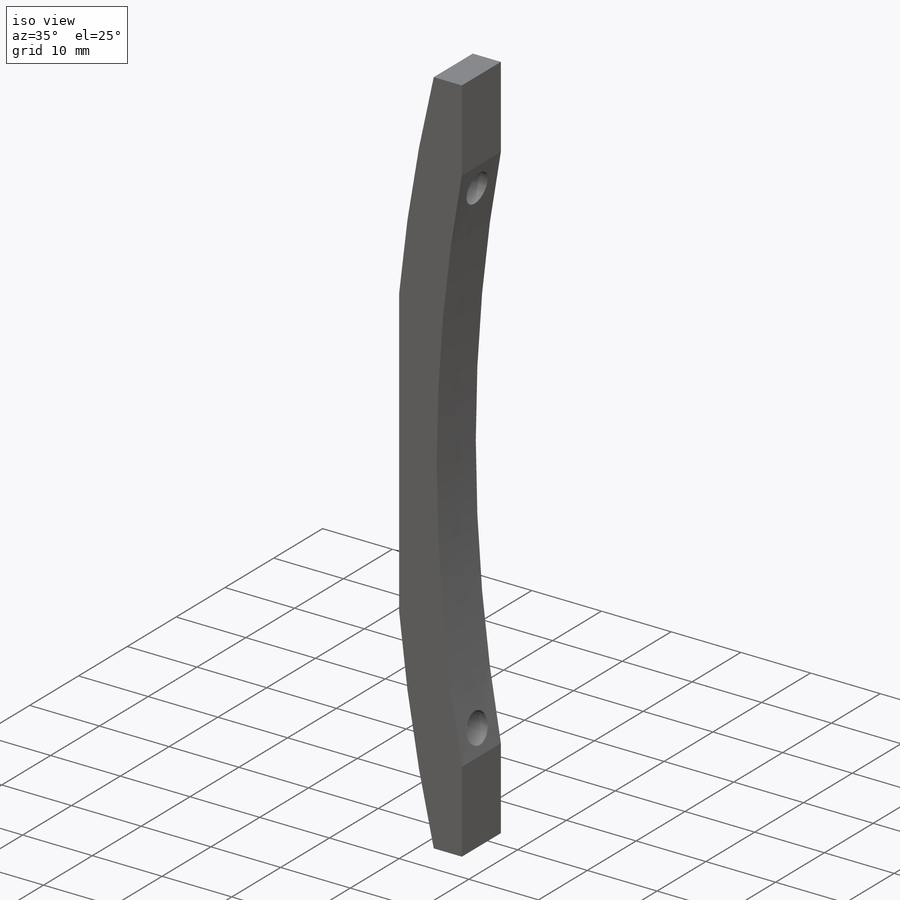
[diagram: iso view]
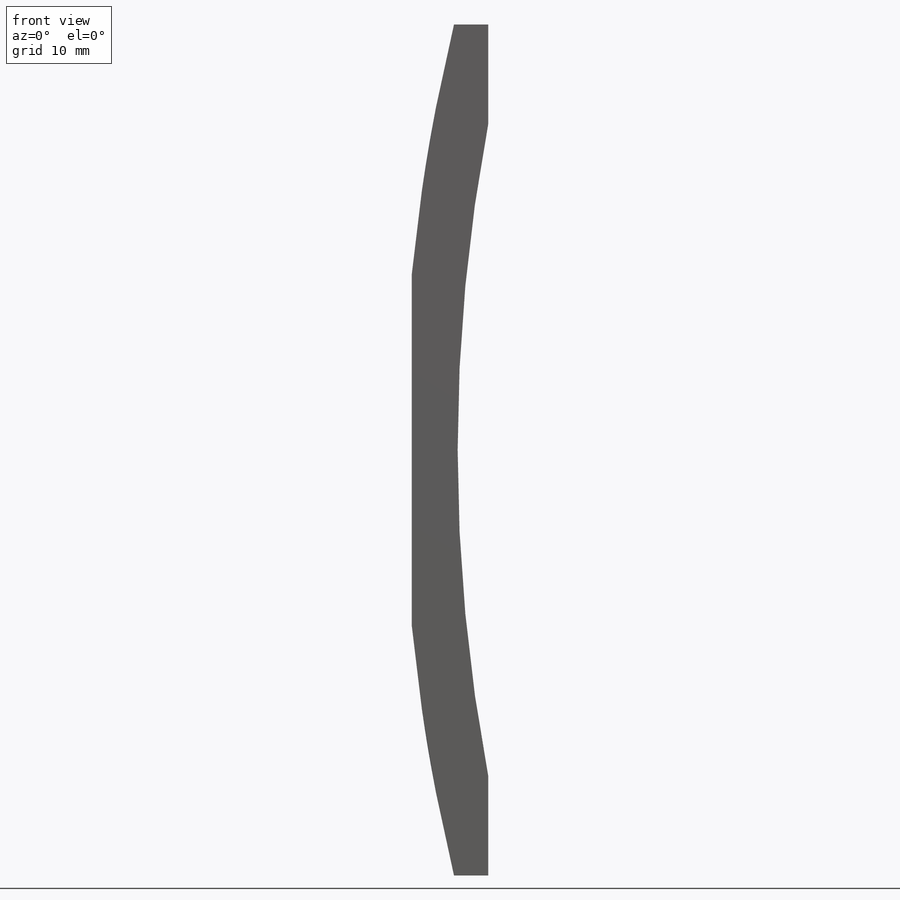
[diagram: front view]
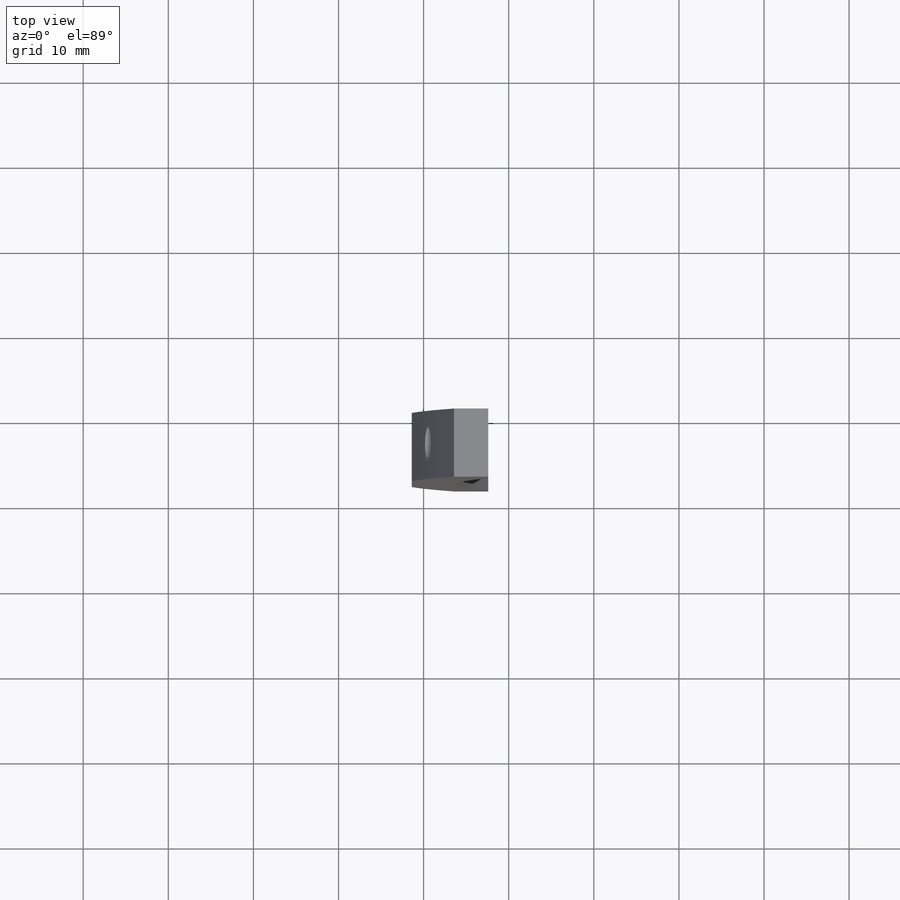
[diagram: top view]
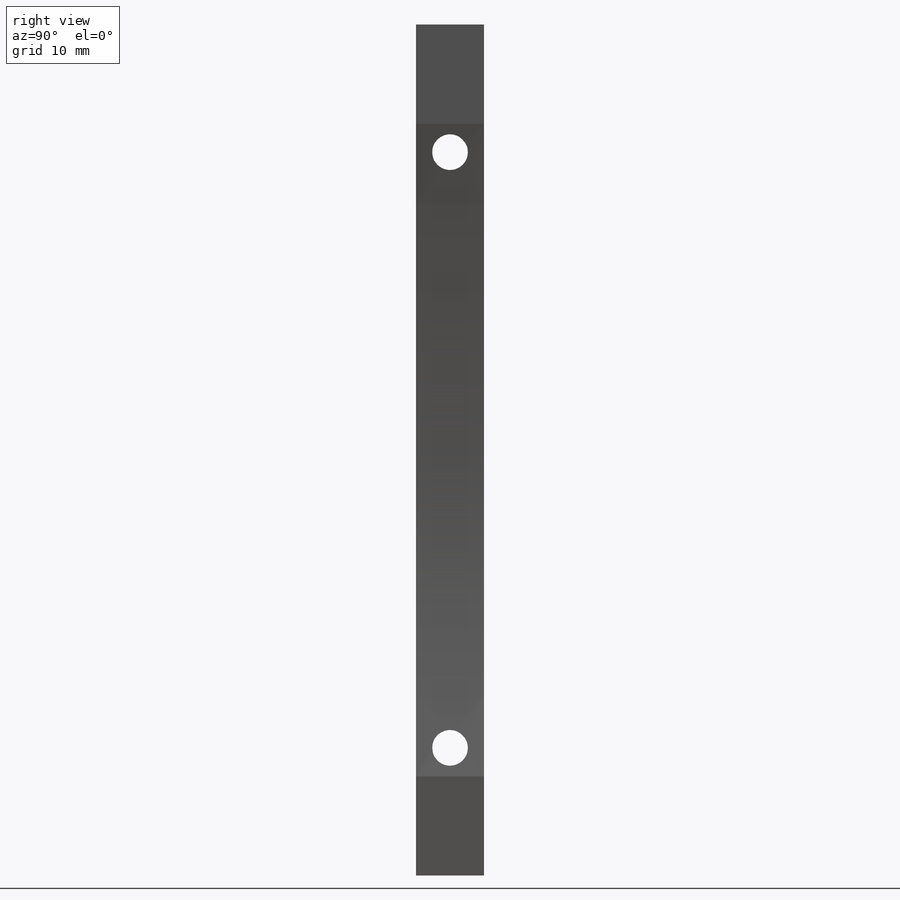
[diagram: right view]
SOLIDWORKS PART (.sldprt)
format: sldprt  version: not decoded by parser v0  size: 210,944 bytes
history: native  units: mm
features: sketch x6, plane x3, hole x2, thread x2, material x1, extrude x1, cut_extrude x1 (+13 scaffold rows collapsed)
feature tree (29):
  scaffold x13  (default folders/planes/origin — collapsed)
  material  "3.1325 (EN-AW 2017A)"
  plane  "Plan de face"
  plane  "Plan de dessus"
  plane  "Plan de droite"
  sketch  "Esquisse1"  dims[c1.D1=~54.141907mm c1.D3=424.8mm c1.D4=~206.041829mm c2.D1=50.0mm c2.D2=100.0mm c2.D3=202.4mm]
  extrude  "Boss.-Extru.1"  Depth=8mm
  hole  "Trou taraudé M51"  Diameter=4.2mm Depth=10mm
  sketch  "Esquisse3"  dims[D1=35.0mm D2=4.0mm]
  sketch  "Esquisse2"  dims[hole-wizard template sketch: 60 standard entries collapsed; hole parameters kept: c18.Profondeur du trou pour taraudage jusqu'au prochain=10.0mm]
  thread  "Filetage de perçage1"  Diameter=5mm  [1 undecoded]
  hole  "Trou taraudé M52"  Diameter=4.2mm Depth=10mm
  sketch  "Esquisse5"  dims[D1=35.0mm D2=4.0mm]
  sketch  "Esquisse4"  dims[hole-wizard template sketch: 60 standard entries collapsed; hole parameters kept: c18.Profondeur du trou pour taraudage jusqu'au prochain=10.0mm]
  thread  "Filetage de perçage2"  Diameter=5mm  [1 undecoded]
  sketch  "Esquisse8"  dims[D1=9.0mm]
  cut_extrude  "Enlèv. mat.-Extru.1"  Depth=34mm
decode coverage: 12 of 12 modeling features carry decoded parameters
note: ~ marks probable driven/reference dimensions
note: 2 parameter values undecoded
note: suppression state not decoded; provenance and decode notes live in map.json
